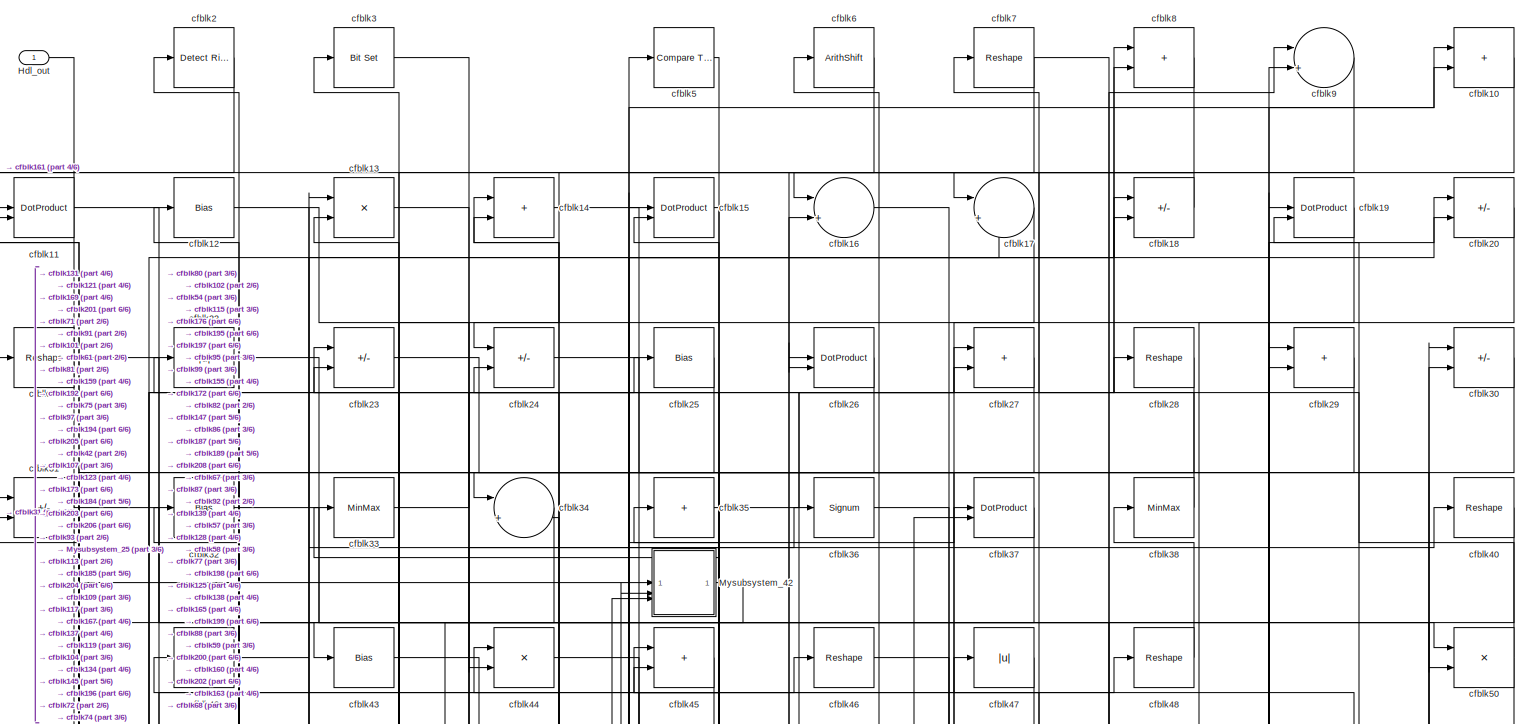
[diagram: root canvas - part 1/6, full width, top band]
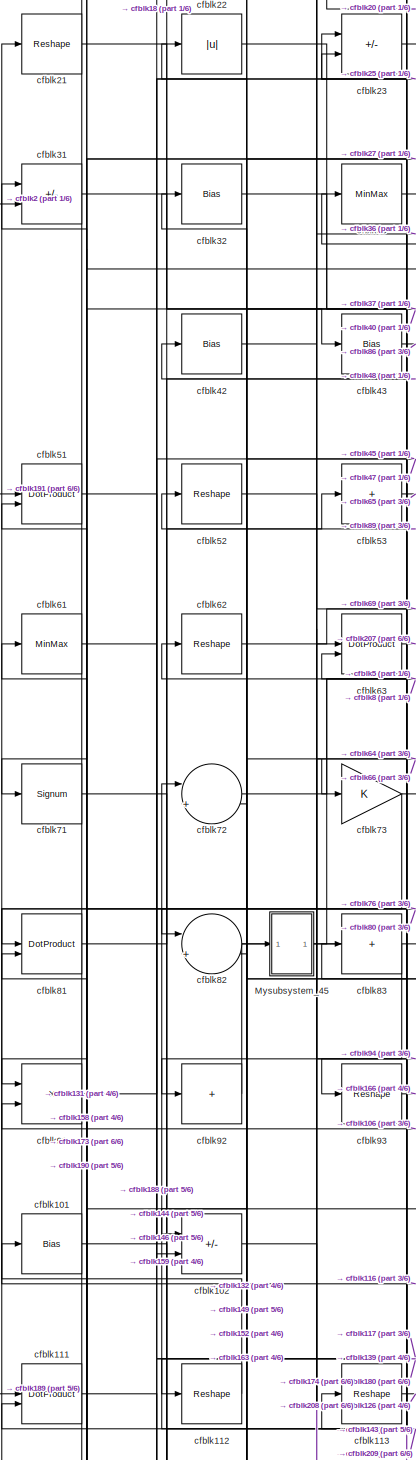
[diagram: root canvas - part 2/6, middle left region]
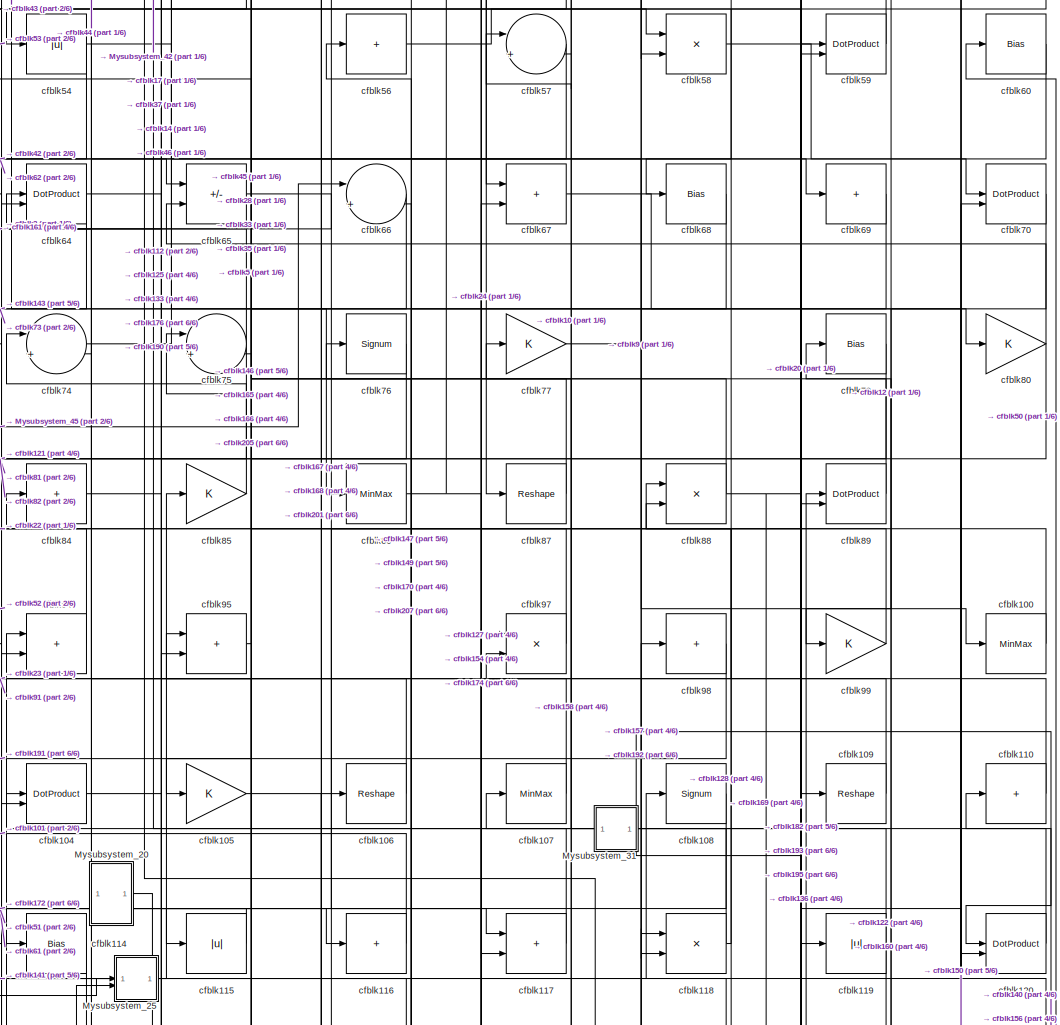
[diagram: root canvas - part 3/6, central region]
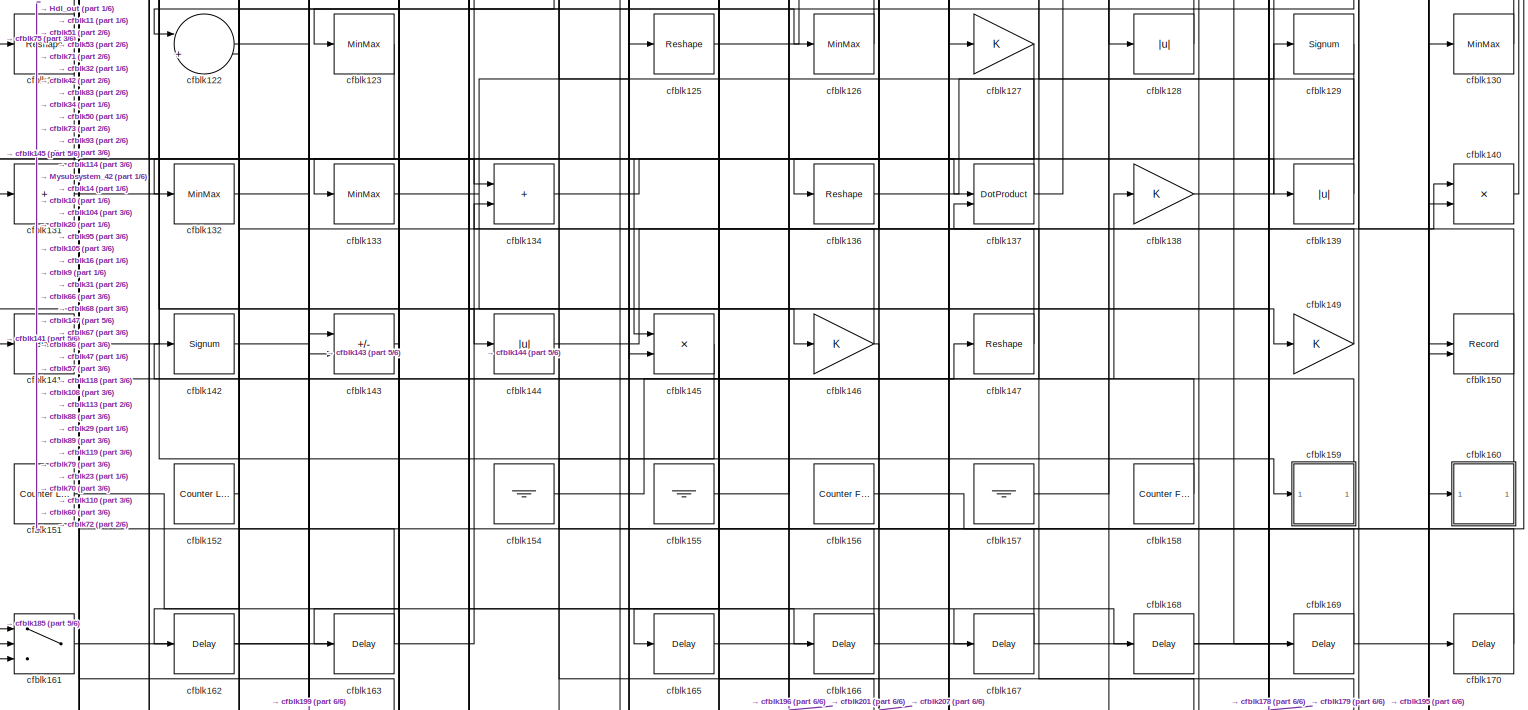
[diagram: root canvas - part 4/6, full width, bottom band]
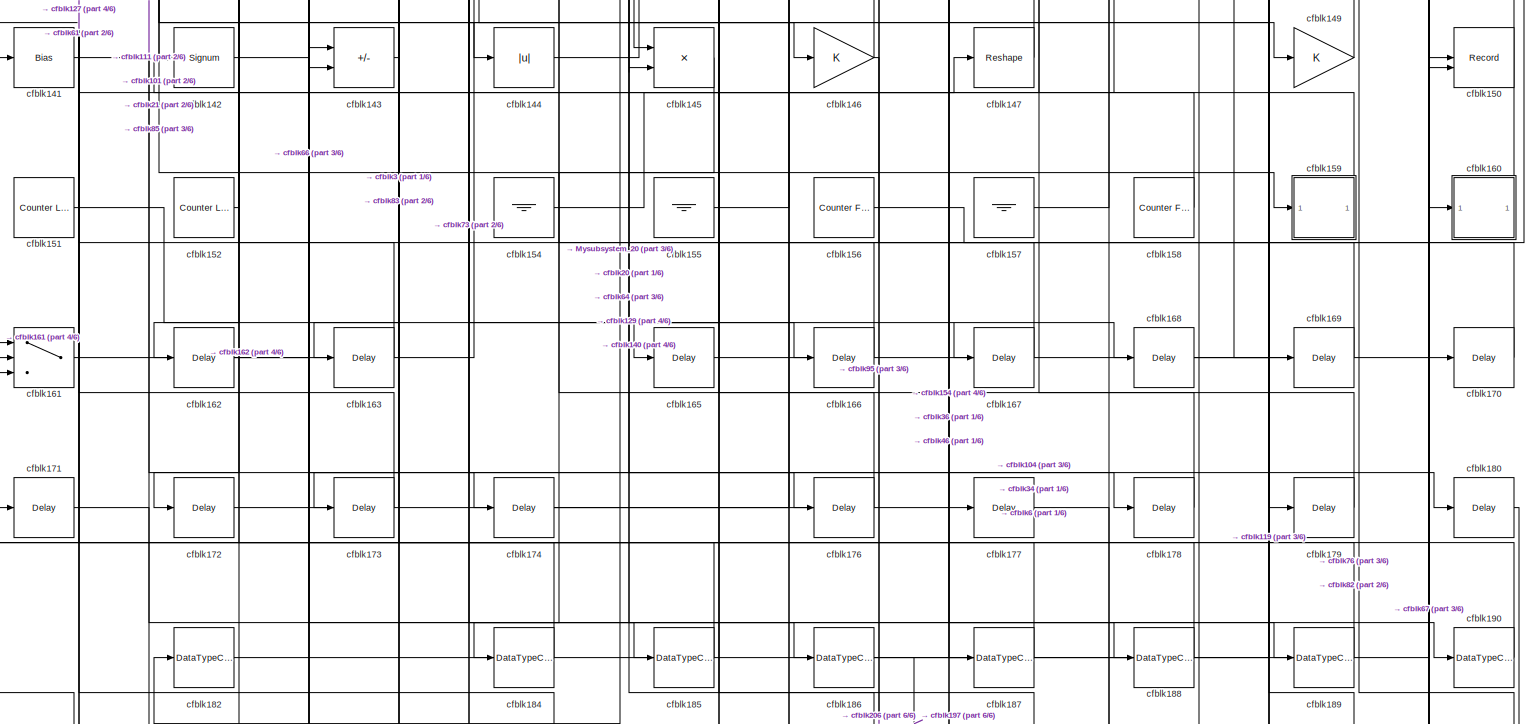
[diagram: root canvas - part 5/6, full width, bottom band]
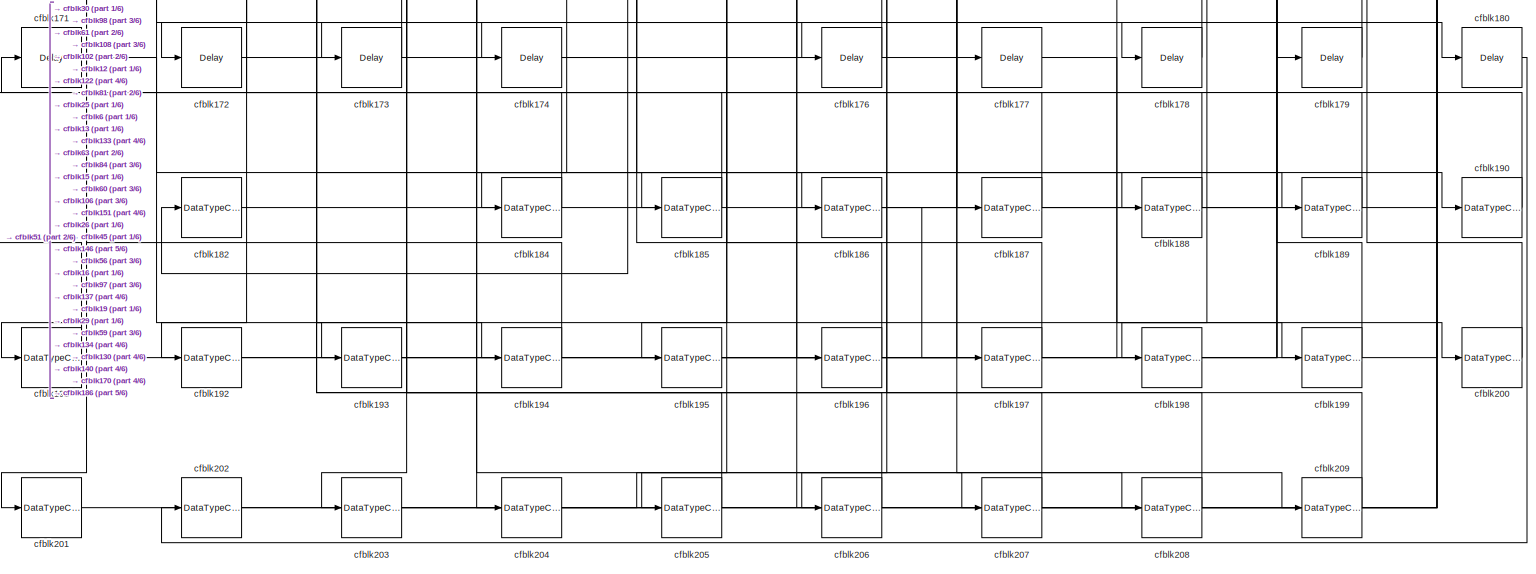
[diagram: root canvas - part 6/6, full width, bottom band]
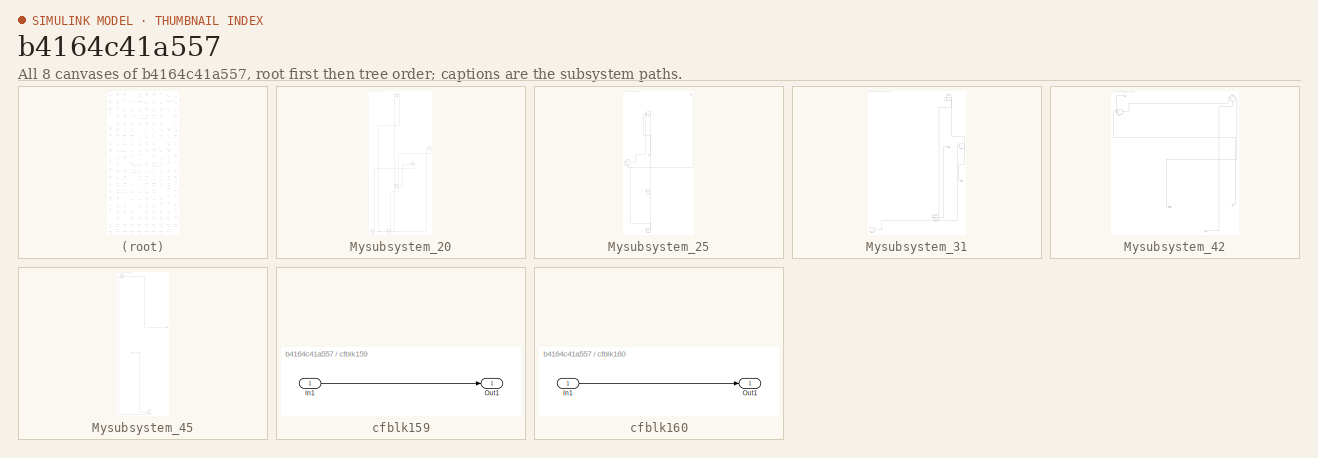
[diagram: thumbnail index - all 8 canvases of the model, root first then tree order]
MODEL slx_b4164c41a557
KIND model
CONFIG AbsTol = auto
CONFIG EnableMultiTasking = off
CONFIG FixedStep = auto
CONFIG MaxStep = auto
CONFIG MinStep = auto
CONFIG RelTol = 1e-3
CONFIG SampleTimeConstraint = Unconstrained
CONFIG SolverName = VariableStepAuto
CONFIG StartTime = 0.0
CONFIG StopTime = 10.0
BLOCK [Outport] Hdl_out
  OutDataTypeStr = uint8
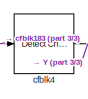
[diagram: Mysubsystem_20 - part 1/3, top center region]
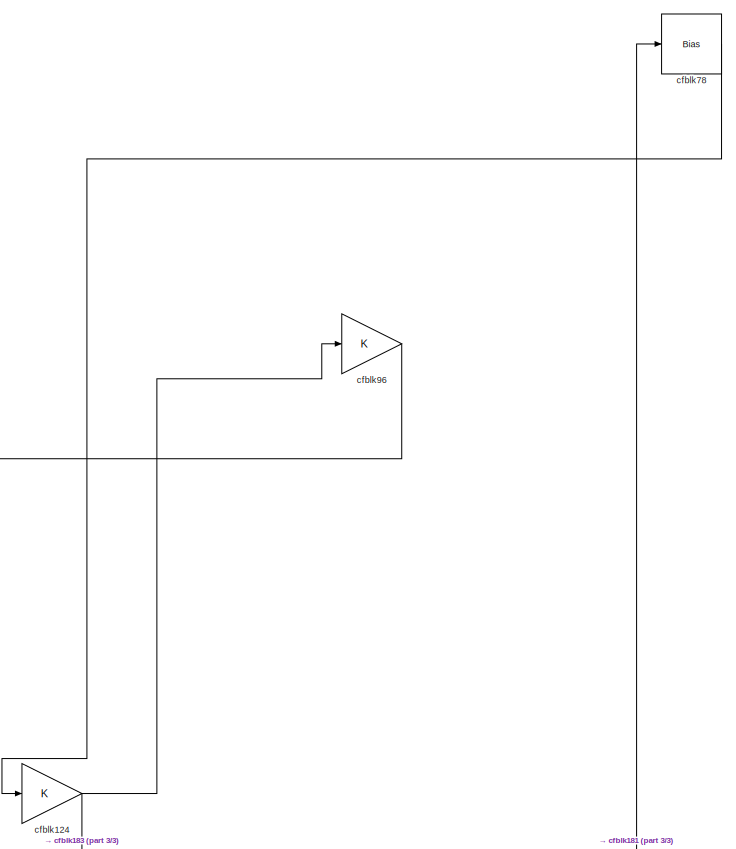
[diagram: Mysubsystem_20 - part 2/3, middle right region]
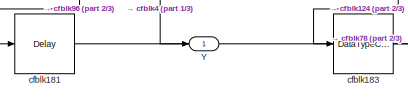
[diagram: Mysubsystem_20 - part 3/3, bottom left region]
BLOCK [SubSystem] Mysubsystem_20
  RTWFcnName = Mysubsystem_20
  RTWFcnNameOpts = User specified
  RTWFileNameOpts = Use function name
  RTWSystemCode = Reusable function
  TreatAsAtomicUnit = on
BLOCK [Outport] Mysubsystem_20/Y
BLOCK [Gain] Mysubsystem_20/cfblk124
BLOCK [Delay] Mysubsystem_20/cfblk181
  InputPortMap = u0
  SampleTime = 1
BLOCK [DataTypeConversion] Mysubsystem_20/cfblk183
  OutDataTypeStr = uint8
  RndMeth = Floor
  SaturateOnIntegerOverflow = off
BLOCK [Reference] Mysubsystem_20/cfblk4  REF=simulink/Logic and Bit
Operations/Detect
Change
  LibrarySourceBlock = hdlsllib/Logic and Bit\nOperations/Detect\nChange
  SourceBlock = simulink/Logic and Bit\nOperations/Detect\nChange
  SourceType = Detect Change
BLOCK [Bias] Mysubsystem_20/cfblk78
  Bias = 0.0
  SaturateOnIntegerOverflow = off
BLOCK [Gain] Mysubsystem_20/cfblk96
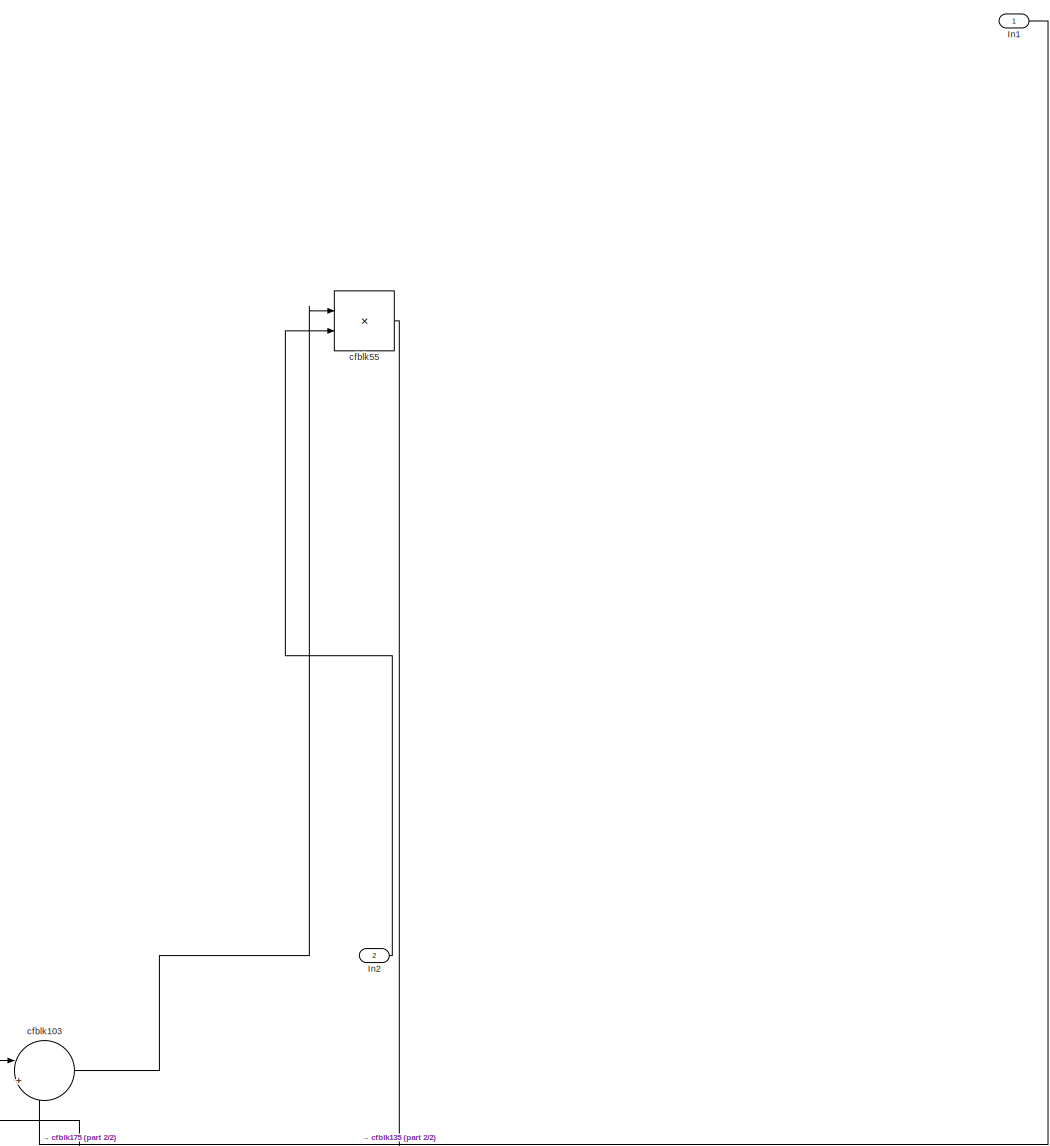
[diagram: Mysubsystem_25 - part 1/2, full width, top band]
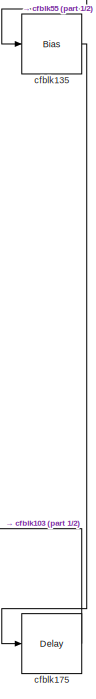
[diagram: Mysubsystem_25 - part 2/2, bottom center region]
BLOCK [SubSystem] Mysubsystem_25
  RTWFcnName = Mysubsystem_25
  RTWFcnNameOpts = User specified
  RTWFileNameOpts = Use function name
  RTWSystemCode = Reusable function
  TreatAsAtomicUnit = on
BLOCK [Inport] Mysubsystem_25/In1
BLOCK [Inport] Mysubsystem_25/In2
  Port = 2
BLOCK [Sum] Mysubsystem_25/cfblk103
  Inputs = |++
BLOCK [Bias] Mysubsystem_25/cfblk135
  Bias = 0.0
  SaturateOnIntegerOverflow = off
BLOCK [Delay] Mysubsystem_25/cfblk175
  InputPortMap = u0
  SampleTime = 1
BLOCK [Product] Mysubsystem_25/cfblk55
  Inputs = */
  RndMeth = Zero
  SaturateOnIntegerOverflow = on
BLOCK [SubSystem] Mysubsystem_31
  RTWFcnName = Mysubsystem_31
  RTWFcnNameOpts = User specified
  RTWFileNameOpts = Use function name
  RTWSystemCode = Reusable function
  TreatAsAtomicUnit = on
BLOCK [Outport] Mysubsystem_31/Out1
BLOCK [Outport] Mysubsystem_31/Out2
  Port = 2
BLOCK [Signum] Mysubsystem_31/cfblk148
BLOCK [Constant] Mysubsystem_31/cfblk153
  SampleTime = -1
BLOCK [Reshape] Mysubsystem_31/cfblk49
BLOCK [Sum] Mysubsystem_31/cfblk90
  IconShape = rectangular
  Inputs = +
BLOCK [SubSystem] Mysubsystem_42
  RTWFcnName = Mysubsystem_42
  RTWFcnNameOpts = User specified
  RTWFileNameOpts = Use function name
  RTWSystemCode = Reusable function
  TreatAsAtomicUnit = on
BLOCK [Inport] Mysubsystem_42/In1
BLOCK [Inport] Mysubsystem_42/In2
  Port = 2
BLOCK [Inport] Mysubsystem_42/In3
  Port = 3
BLOCK [Outport] Mysubsystem_42/Out1
BLOCK [Sum] Mysubsystem_42/cfblk39
  Inputs = |++
BLOCK [Sum] Mysubsystem_42/cfblk41
  IconShape = rectangular
BLOCK [SubSystem] Mysubsystem_45
  RTWFcnName = Mysubsystem_45
  RTWFcnNameOpts = User specified
  RTWFileNameOpts = Use function name
  RTWSystemCode = Reusable function
  TreatAsAtomicUnit = on
BLOCK [Inport] Mysubsystem_45/In1
BLOCK [Outport] Mysubsystem_45/Y
BLOCK [Reference] Mysubsystem_45/cfblk1  REF=hdlsllib/Logic and Bit
Operations/Detect Rise
Nonnegative
  SourceBlock = hdlsllib/Logic and Bit\nOperations/Detect Rise\nNonnegative
  SourceType = Detect Rise Nonnegative
BLOCK [Delay] Mysubsystem_45/cfblk164
  InputPortMap = u0
  SampleTime = 1
BLOCK [Sum] cfblk10
  IconShape = rectangular
  OutDataTypeStr = uint8
BLOCK [MinMax] cfblk100
  OutDataTypeStr = uint8
BLOCK [Bias] cfblk101
  Bias = 0.0
  SaturateOnIntegerOverflow = off
BLOCK [Sum] cfblk102
  IconShape = rectangular
  Inputs = +-
  OutDataTypeStr = uint8
BLOCK [DotProduct] cfblk104
  OutDataTypeStr = uint8
BLOCK [Gain] cfblk105
  OutDataTypeStr = uint8
BLOCK [Reshape] cfblk106
BLOCK [MinMax] cfblk107
  OutDataTypeStr = uint8
BLOCK [Signum] cfblk108
BLOCK [Reshape] cfblk109
BLOCK [DotProduct] cfblk11
  OutDataTypeStr = uint8
BLOCK [Sum] cfblk110
  IconShape = rectangular
  Inputs = +
  OutDataTypeStr = uint8
BLOCK [DotProduct] cfblk111
  OutDataTypeStr = uint8
BLOCK [Reshape] cfblk112
BLOCK [Reshape] cfblk113
BLOCK [Bias] cfblk114
  Bias = 0.0
  SaturateOnIntegerOverflow = off
BLOCK [Abs] cfblk115
  OutDataTypeStr = uint8
  SaturateOnIntegerOverflow = off
BLOCK [Sum] cfblk116
  IconShape = rectangular
  Inputs = +
  OutDataTypeStr = uint8
BLOCK [Sum] cfblk117
  IconShape = rectangular
  OutDataTypeStr = uint8
BLOCK [Product] cfblk118
  Inputs = */
  OutDataTypeStr = uint8
  RndMeth = Zero
  SaturateOnIntegerOverflow = on
BLOCK [Abs] cfblk119
  OutDataTypeStr = uint8
  SaturateOnIntegerOverflow = off
BLOCK [Bias] cfblk12
  Bias = 0.0
  SaturateOnIntegerOverflow = off
BLOCK [DotProduct] cfblk120
  OutDataTypeStr = uint8
BLOCK [Reshape] cfblk121
BLOCK [Sum] cfblk122
  Inputs = |++
  OutDataTypeStr = uint8
BLOCK [MinMax] cfblk123
  OutDataTypeStr = uint8
BLOCK [Reshape] cfblk125
BLOCK [MinMax] cfblk126
  OutDataTypeStr = uint8
BLOCK [Gain] cfblk127
  OutDataTypeStr = uint8
BLOCK [Abs] cfblk128
  OutDataTypeStr = uint8
  SaturateOnIntegerOverflow = off
BLOCK [Signum] cfblk129
BLOCK [Product] cfblk13
  Inputs = */
  OutDataTypeStr = uint8
  RndMeth = Zero
  SaturateOnIntegerOverflow = on
BLOCK [MinMax] cfblk130
  OutDataTypeStr = uint8
BLOCK [Sum] cfblk131
  IconShape = rectangular
  Inputs = +
  OutDataTypeStr = uint8
BLOCK [MinMax] cfblk132
  OutDataTypeStr = uint8
BLOCK [MinMax] cfblk133
  OutDataTypeStr = uint8
BLOCK [Sum] cfblk134
  IconShape = rectangular
  OutDataTypeStr = uint8
BLOCK [Reshape] cfblk136
BLOCK [DotProduct] cfblk137
  OutDataTypeStr = uint8
BLOCK [Gain] cfblk138
  OutDataTypeStr = uint8
BLOCK [Abs] cfblk139
  OutDataTypeStr = uint8
  SaturateOnIntegerOverflow = off
BLOCK [Sum] cfblk14
  IconShape = rectangular
  OutDataTypeStr = uint8
BLOCK [Product] cfblk140
  Inputs = */
  OutDataTypeStr = uint8
  RndMeth = Zero
  SaturateOnIntegerOverflow = on
BLOCK [Bias] cfblk141
  Bias = 0.0
  SaturateOnIntegerOverflow = off
BLOCK [Signum] cfblk142
BLOCK [Sum] cfblk143
  IconShape = rectangular
  Inputs = +-
  OutDataTypeStr = uint8
BLOCK [Abs] cfblk144
  OutDataTypeStr = uint8
  SaturateOnIntegerOverflow = off
BLOCK [Product] cfblk145
  Inputs = */
  OutDataTypeStr = uint8
  RndMeth = Zero
  SaturateOnIntegerOverflow = on
BLOCK [Gain] cfblk146
  OutDataTypeStr = uint8
BLOCK [Reshape] cfblk147
BLOCK [Gain] cfblk149
  OutDataTypeStr = uint8
BLOCK [DotProduct] cfblk15
  OutDataTypeStr = uint8
BLOCK [Record] cfblk150
  CompatibilityTag = XY
  FileSettingsInternal = {"entries":[{"content":{"excelSettings":{"content":{},"type":"Streamout.ExcelSettings"}},"type":"Streamout.FileSettingStorage","uuid":""}],"packageUris":["http:\/\/schema.mathworks.com\/mf0\/streamout_blocks\/R2020a"],"version":"1.0"}
  Layout = [1 1]
  SignalsInternal = {"entries":[{"content":{"signals":[{"content":{"blockPath":[],"dimensions":[1],"domain":"","lineColor":"#a2142f","plots":[1],"port":1,"signalID":24196,"signalName":"cfblk67"},"type":"RecordBlkView.Signal","uuid":""},{"content":{"blockPath":[],"dimensions":[1],"domain":"","lineColor":"#139fff","plots":[1],"port":2,"signalID":24199,"signalName":"cfblk186"},"type":"RecordBlkView.Signal","uuid":""}]},...<+143ch>
  VisualizationBindings = {"xyplotplugin":{"info":[{"series":[{"bindingParametersList":[{"parameter":"X-Axis","signalID":24196,"signalName":"cfblk67"},{"parameter":"Y-Axis","signalID":24199,"signalName":"cfblk186"}],"seriesID":33994}],"subplotID":1}]}}
  st = -1
BLOCK [Reference] cfblk151  REF=hdlsllib/Sources/Counter
Limited
  SourceBlock = hdlsllib/Sources/Counter\nLimited
  SourceType = Counter Limited
BLOCK [Reference] cfblk152  REF=hdlsllib/Sources/Counter
Limited
  SourceBlock = hdlsllib/Sources/Counter\nLimited
  SourceType = Counter Limited
BLOCK [Ground] cfblk154
BLOCK [Ground] cfblk155
BLOCK [Reference] cfblk156  REF=hdlsllib/Sources/Counter
Free-Running
  SourceBlock = hdlsllib/Sources/Counter\nFree-Running
  SourceType = Counter Free-Running
BLOCK [Ground] cfblk157
BLOCK [Reference] cfblk158  REF=hdlsllib/Sources/Counter
Free-Running
  SourceBlock = hdlsllib/Sources/Counter\nFree-Running
  SourceType = Counter Free-Running
BLOCK [SubSystem] cfblk159
  LibrarySourceBlock = hdlsllib/Ports &\nSubsystems/Subsystem
BLOCK [Inport] cfblk159/In1
BLOCK [Outport] cfblk159/Out1
BLOCK [Sum] cfblk16
  Inputs = |++
  OutDataTypeStr = uint8
BLOCK [SubSystem] cfblk160
  LibrarySourceBlock = hdlsllib/Ports &\nSubsystems/Subsystem
BLOCK [Inport] cfblk160/In1
BLOCK [Outport] cfblk160/Out1
BLOCK [Switch] cfblk161
  InputSameDT = off
  OutDataTypeStr = uint8
  SaturateOnIntegerOverflow = off
BLOCK [Delay] cfblk162
  InputPortMap = u0
  SampleTime = 1
BLOCK [Delay] cfblk163
  InputPortMap = u0
  SampleTime = 1
BLOCK [Delay] cfblk165
  InputPortMap = u0
  SampleTime = 1
BLOCK [Delay] cfblk166
  InputPortMap = u0
  SampleTime = 1
BLOCK [Delay] cfblk167
  InputPortMap = u0
  SampleTime = 1
BLOCK [Delay] cfblk168
  InputPortMap = u0
  SampleTime = 1
BLOCK [Delay] cfblk169
  InputPortMap = u0
  SampleTime = 1
BLOCK [Sum] cfblk17
  Inputs = |++
  OutDataTypeStr = uint8
BLOCK [Delay] cfblk170
  InputPortMap = u0
  SampleTime = 1
BLOCK [Delay] cfblk171
  InputPortMap = u0
  SampleTime = 1
BLOCK [Delay] cfblk172
  InputPortMap = u0
  SampleTime = 1
BLOCK [Delay] cfblk173
  InputPortMap = u0
  SampleTime = 1
BLOCK [Delay] cfblk174
  InputPortMap = u0
  SampleTime = 1
BLOCK [Delay] cfblk176
  InputPortMap = u0
  SampleTime = 1
BLOCK [Delay] cfblk177
  InputPortMap = u0
  SampleTime = 1
BLOCK [Delay] cfblk178
  InputPortMap = u0
  SampleTime = 1
BLOCK [Delay] cfblk179
  InputPortMap = u0
  SampleTime = 1
BLOCK [Sum] cfblk18
  IconShape = rectangular
  Inputs = +-
  OutDataTypeStr = uint8
BLOCK [Delay] cfblk180
  InputPortMap = u0
  SampleTime = 1
BLOCK [DataTypeConversion] cfblk182
  OutDataTypeStr = uint8
  RndMeth = Floor
  SaturateOnIntegerOverflow = off
BLOCK [DataTypeConversion] cfblk184
  OutDataTypeStr = uint8
  RndMeth = Floor
  SaturateOnIntegerOverflow = off
BLOCK [DataTypeConversion] cfblk185
  OutDataTypeStr = uint8
  RndMeth = Floor
  SaturateOnIntegerOverflow = off
BLOCK [DataTypeConversion] cfblk186
  OutDataTypeStr = uint8
  RndMeth = Floor
  SaturateOnIntegerOverflow = off
BLOCK [DataTypeConversion] cfblk187
  OutDataTypeStr = uint8
  RndMeth = Floor
  SaturateOnIntegerOverflow = off
BLOCK [DataTypeConversion] cfblk188
  OutDataTypeStr = uint8
  RndMeth = Floor
  SaturateOnIntegerOverflow = off
BLOCK [DataTypeConversion] cfblk189
  OutDataTypeStr = uint8
  RndMeth = Floor
  SaturateOnIntegerOverflow = off
BLOCK [DotProduct] cfblk19
  OutDataTypeStr = uint8
BLOCK [DataTypeConversion] cfblk190
  OutDataTypeStr = uint8
  RndMeth = Floor
  SaturateOnIntegerOverflow = off
BLOCK [DataTypeConversion] cfblk191
  OutDataTypeStr = uint8
  RndMeth = Floor
  SaturateOnIntegerOverflow = off
BLOCK [DataTypeConversion] cfblk192
  OutDataTypeStr = uint8
  RndMeth = Floor
  SaturateOnIntegerOverflow = off
BLOCK [DataTypeConversion] cfblk193
  OutDataTypeStr = uint8
  RndMeth = Floor
  SaturateOnIntegerOverflow = off
BLOCK [DataTypeConversion] cfblk194
  OutDataTypeStr = uint8
  RndMeth = Floor
  SaturateOnIntegerOverflow = off
BLOCK [DataTypeConversion] cfblk195
  OutDataTypeStr = uint8
  RndMeth = Floor
  SaturateOnIntegerOverflow = off
BLOCK [DataTypeConversion] cfblk196
  OutDataTypeStr = uint8
  RndMeth = Floor
  SaturateOnIntegerOverflow = off
BLOCK [DataTypeConversion] cfblk197
  OutDataTypeStr = uint8
  RndMeth = Floor
  SaturateOnIntegerOverflow = off
BLOCK [DataTypeConversion] cfblk198
  OutDataTypeStr = uint8
  RndMeth = Floor
  SaturateOnIntegerOverflow = off
BLOCK [DataTypeConversion] cfblk199
  OutDataTypeStr = uint8
  RndMeth = Floor
  SaturateOnIntegerOverflow = off
BLOCK [Reference] cfblk2  REF=hdlsllib/Logic and Bit
Operations/Detect Rise
Positive
  SourceBlock = hdlsllib/Logic and Bit\nOperations/Detect Rise\nPositive
  SourceType = Detect Rise Positive
BLOCK [Sum] cfblk20
  IconShape = rectangular
  Inputs = +-
  OutDataTypeStr = uint8
BLOCK [DataTypeConversion] cfblk200
  OutDataTypeStr = uint8
  RndMeth = Floor
  SaturateOnIntegerOverflow = off
BLOCK [DataTypeConversion] cfblk201
  OutDataTypeStr = uint8
  RndMeth = Floor
  SaturateOnIntegerOverflow = off
BLOCK [DataTypeConversion] cfblk202
  OutDataTypeStr = uint8
  RndMeth = Floor
  SaturateOnIntegerOverflow = off
BLOCK [DataTypeConversion] cfblk203
  OutDataTypeStr = uint8
  RndMeth = Floor
  SaturateOnIntegerOverflow = off
BLOCK [DataTypeConversion] cfblk204
  OutDataTypeStr = uint8
  RndMeth = Floor
  SaturateOnIntegerOverflow = off
BLOCK [DataTypeConversion] cfblk205
  OutDataTypeStr = uint8
  RndMeth = Floor
  SaturateOnIntegerOverflow = off
BLOCK [DataTypeConversion] cfblk206
  OutDataTypeStr = uint8
  RndMeth = Floor
  SaturateOnIntegerOverflow = off
BLOCK [DataTypeConversion] cfblk207
  OutDataTypeStr = uint8
  RndMeth = Floor
  SaturateOnIntegerOverflow = off
BLOCK [DataTypeConversion] cfblk208
  OutDataTypeStr = uint8
  RndMeth = Floor
  SaturateOnIntegerOverflow = off
BLOCK [DataTypeConversion] cfblk209
  OutDataTypeStr = uint8
  RndMeth = Floor
  SaturateOnIntegerOverflow = off
BLOCK [Reshape] cfblk21
BLOCK [Abs] cfblk22
  OutDataTypeStr = uint8
  SaturateOnIntegerOverflow = off
BLOCK [Sum] cfblk23
  IconShape = rectangular
  Inputs = +-
  OutDataTypeStr = uint8
BLOCK [Sum] cfblk24
  IconShape = rectangular
  Inputs = +-
  OutDataTypeStr = uint8
BLOCK [Bias] cfblk25
  Bias = 0.0
  SaturateOnIntegerOverflow = off
BLOCK [DotProduct] cfblk26
  OutDataTypeStr = uint8
BLOCK [Sum] cfblk27
  IconShape = rectangular
  OutDataTypeStr = uint8
BLOCK [Reshape] cfblk28
BLOCK [Sum] cfblk29
  IconShape = rectangular
  OutDataTypeStr = uint8
BLOCK [Reference] cfblk3  REF=simulink/Logic and Bit
Operations/Bit Set
  LibrarySourceBlock = hdlsllib/Logic and Bit\nOperations/Bit Set
  SourceBlock = simulink/Logic and Bit\nOperations/Bit Set
  SourceType = Bit Set
BLOCK [Sum] cfblk30
  IconShape = rectangular
  Inputs = +-
  OutDataTypeStr = uint8
BLOCK [Sum] cfblk31
  IconShape = rectangular
  Inputs = +-
  OutDataTypeStr = uint8
BLOCK [Bias] cfblk32
  Bias = 0.0
  SaturateOnIntegerOverflow = off
BLOCK [MinMax] cfblk33
  OutDataTypeStr = uint8
BLOCK [Sum] cfblk34
  Inputs = |++
  OutDataTypeStr = uint8
BLOCK [Sum] cfblk35
  IconShape = rectangular
  Inputs = +
  OutDataTypeStr = uint8
BLOCK [Signum] cfblk36
BLOCK [DotProduct] cfblk37
  OutDataTypeStr = uint8
BLOCK [MinMax] cfblk38
  OutDataTypeStr = uint8
BLOCK [Reshape] cfblk40
BLOCK [Bias] cfblk42
  Bias = 0.0
  SaturateOnIntegerOverflow = off
BLOCK [Bias] cfblk43
  Bias = 0.0
  SaturateOnIntegerOverflow = off
BLOCK [Product] cfblk44
  Inputs = */
  OutDataTypeStr = uint8
  RndMeth = Zero
  SaturateOnIntegerOverflow = on
BLOCK [Sum] cfblk45
  IconShape = rectangular
  OutDataTypeStr = uint8
BLOCK [Reshape] cfblk46
BLOCK [Abs] cfblk47
  OutDataTypeStr = uint8
  SaturateOnIntegerOverflow = off
BLOCK [Reshape] cfblk48
BLOCK [Reference] cfblk5  REF=hdlsllib/Logic and Bit
Operations/Compare
To Constant
  SourceBlock = hdlsllib/Logic and Bit\nOperations/Compare\nTo Constant
  SourceType = Compare To Constant
BLOCK [Product] cfblk50
  Inputs = */
  OutDataTypeStr = uint8
  RndMeth = Zero
  SaturateOnIntegerOverflow = on
BLOCK [DotProduct] cfblk51
  OutDataTypeStr = uint8
BLOCK [Reshape] cfblk52
BLOCK [Sum] cfblk53
  IconShape = rectangular
  Inputs = +
  OutDataTypeStr = uint8
BLOCK [Abs] cfblk54
  OutDataTypeStr = uint8
  SaturateOnIntegerOverflow = off
BLOCK [Sum] cfblk56
  IconShape = rectangular
  Inputs = +
  OutDataTypeStr = uint8
BLOCK [Sum] cfblk57
  Inputs = |++
  OutDataTypeStr = uint8
BLOCK [Product] cfblk58
  Inputs = */
  OutDataTypeStr = uint8
  RndMeth = Zero
  SaturateOnIntegerOverflow = on
BLOCK [DotProduct] cfblk59
  OutDataTypeStr = uint8
BLOCK [ArithShift] cfblk6
  BitShiftNumber = 8
  InputPortMap = u0
BLOCK [Bias] cfblk60
  Bias = 0.0
  SaturateOnIntegerOverflow = off
BLOCK [MinMax] cfblk61
  OutDataTypeStr = uint8
BLOCK [Reshape] cfblk62
BLOCK [DotProduct] cfblk63
  OutDataTypeStr = uint8
BLOCK [DotProduct] cfblk64
  OutDataTypeStr = uint8
BLOCK [Sum] cfblk65
  IconShape = rectangular
  Inputs = +-
  OutDataTypeStr = uint8
BLOCK [Sum] cfblk66
  Inputs = |++
  OutDataTypeStr = uint8
BLOCK [Sum] cfblk67
  IconShape = rectangular
  OutDataTypeStr = uint8
BLOCK [Bias] cfblk68
  Bias = 0.0
  SaturateOnIntegerOverflow = off
BLOCK [Sum] cfblk69
  IconShape = rectangular
  Inputs = +
  OutDataTypeStr = uint8
BLOCK [Reshape] cfblk7
BLOCK [DotProduct] cfblk70
  OutDataTypeStr = uint8
BLOCK [Signum] cfblk71
BLOCK [Sum] cfblk72
  Inputs = |++
  OutDataTypeStr = uint8
BLOCK [Gain] cfblk73
  OutDataTypeStr = uint8
BLOCK [Sum] cfblk74
  Inputs = |++
  OutDataTypeStr = uint8
BLOCK [Sum] cfblk75
  Inputs = |++
  OutDataTypeStr = uint8
BLOCK [Signum] cfblk76
BLOCK [Gain] cfblk77
  OutDataTypeStr = uint8
BLOCK [Bias] cfblk79
  Bias = 0.0
  SaturateOnIntegerOverflow = off
BLOCK [Sum] cfblk8
  IconShape = rectangular
  OutDataTypeStr = uint8
BLOCK [Gain] cfblk80
  OutDataTypeStr = uint8
BLOCK [DotProduct] cfblk81
  OutDataTypeStr = uint8
BLOCK [Sum] cfblk82
  Inputs = |++
  OutDataTypeStr = uint8
BLOCK [Sum] cfblk83
  IconShape = rectangular
  Inputs = +
  OutDataTypeStr = uint8
BLOCK [Sum] cfblk84
  IconShape = rectangular
  Inputs = +
  OutDataTypeStr = uint8
BLOCK [Gain] cfblk85
  OutDataTypeStr = uint8
BLOCK [MinMax] cfblk86
  OutDataTypeStr = uint8
BLOCK [Reshape] cfblk87
BLOCK [Product] cfblk88
  Inputs = */
  OutDataTypeStr = uint8
  RndMeth = Zero
  SaturateOnIntegerOverflow = on
BLOCK [DotProduct] cfblk89
  OutDataTypeStr = uint8
BLOCK [Sum] cfblk9
  Inputs = |++
  OutDataTypeStr = uint8
BLOCK [Product] cfblk91
  Inputs = */
  OutDataTypeStr = uint8
  RndMeth = Zero
  SaturateOnIntegerOverflow = on
BLOCK [Sum] cfblk92
  IconShape = rectangular
  Inputs = +
  OutDataTypeStr = uint8
BLOCK [Reshape] cfblk93
BLOCK [Sum] cfblk94
  IconShape = rectangular
  OutDataTypeStr = uint8
BLOCK [Sum] cfblk95
  IconShape = rectangular
  OutDataTypeStr = uint8
BLOCK [Product] cfblk97
  Inputs = */
  OutDataTypeStr = uint8
  RndMeth = Zero
  SaturateOnIntegerOverflow = on
BLOCK [Sum] cfblk98
  IconShape = rectangular
  Inputs = +
  OutDataTypeStr = uint8
BLOCK [Gain] cfblk99
  OutDataTypeStr = uint8
NET Mysubsystem_20/cfblk124:1 -> Mysubsystem_20/cfblk183:1, Mysubsystem_20/cfblk96:1
LINE Mysubsystem_20/cfblk181:1 -> Mysubsystem_20/cfblk78:1
LINE Mysubsystem_20/cfblk183:1 -> Mysubsystem_20/cfblk4:1
LINE Mysubsystem_20/cfblk4:1 -> Mysubsystem_20/Y:1
LINE Mysubsystem_20/cfblk78:1 -> Mysubsystem_20/cfblk124:1
LINE Mysubsystem_20/cfblk96:1 -> Mysubsystem_20/cfblk181:1
LINE Mysubsystem_20:1 -> cfblk182:1
LINE Mysubsystem_25/In1:1 -> Mysubsystem_25/cfblk103:2
LINE Mysubsystem_25/In2:1 -> Mysubsystem_25/cfblk55:2
LINE Mysubsystem_25/cfblk103:1 -> Mysubsystem_25/cfblk55:1
LINE Mysubsystem_25/cfblk135:1 -> Mysubsystem_25/cfblk175:1
LINE Mysubsystem_25/cfblk175:1 -> Mysubsystem_25/cfblk103:1
LINE Mysubsystem_25/cfblk55:1 -> Mysubsystem_25/cfblk135:1
LINE Mysubsystem_31/cfblk148:1 -> Mysubsystem_31/Out1:1
LINE Mysubsystem_31/cfblk153:1 -> Mysubsystem_31/cfblk90:1
LINE Mysubsystem_31/cfblk49:1 -> Mysubsystem_31/cfblk148:1
NET Mysubsystem_31/cfblk90:1 -> Mysubsystem_31/Out2:1, Mysubsystem_31/cfblk49:1
LINE Mysubsystem_31:1 -> cfblk89:2
LINE Mysubsystem_31:2 -> cfblk120:1
LINE Mysubsystem_42/In1:1 -> Mysubsystem_42/cfblk41:2
LINE Mysubsystem_42/In2:1 -> Mysubsystem_42/cfblk41:1
LINE Mysubsystem_42/In3:1 -> Mysubsystem_42/cfblk39:2
LINE Mysubsystem_42/cfblk39:1 -> Mysubsystem_42/Out1:1
LINE Mysubsystem_42/cfblk41:1 -> Mysubsystem_42/cfblk39:1
LINE Mysubsystem_42:1 -> Mysubsystem_25:1
LINE Mysubsystem_45/In1:1 -> Mysubsystem_45/cfblk164:1
LINE Mysubsystem_45/cfblk164:1 -> Mysubsystem_45/cfblk1:1
LINE Mysubsystem_45/cfblk1:1 -> Mysubsystem_45/Y:1
LINE Mysubsystem_45:1 -> cfblk66:1
LINE cfblk100:1 -> cfblk84:1
NET cfblk101:1 -> cfblk144:1, cfblk18:2
LINE cfblk102:1 -> cfblk174:1
NET cfblk104:1 -> cfblk125:1, cfblk17:2, cfblk37:1
NET cfblk105:1 -> cfblk167:1, cfblk168:1
NET cfblk106:1 -> Mysubsystem_25:2, cfblk64:1, cfblk91:2
LINE cfblk107:1 -> cfblk23:1
LINE cfblk108:1 -> cfblk172:1
LINE cfblk109:1 -> cfblk24:2
NET cfblk10:1 -> cfblk161:2, cfblk57:2
NET cfblk110:1 -> cfblk88:2, cfblk97:2
LINE cfblk111:1 -> cfblk188:1
LINE cfblk112:1 -> cfblk21:1
NET cfblk113:1 -> cfblk126:1, cfblk40:1
LINE cfblk114:1 -> cfblk122:2
LINE cfblk115:1 -> cfblk114:1
LINE cfblk116:1 -> cfblk101:1
LINE cfblk117:1 -> cfblk44:1
NET cfblk118:1 -> cfblk107:1, cfblk88:1
NET cfblk119:1 -> Mysubsystem_42:2, cfblk122:1
LINE cfblk11:1 -> cfblk50:1
LINE cfblk120:1 -> cfblk77:1
LINE cfblk121:1 -> cfblk11:1
LINE cfblk122:1 -> cfblk199:1
LINE cfblk123:1 -> cfblk133:1
LINE cfblk125:1 -> cfblk9:2
LINE cfblk126:1 -> cfblk31:1
LINE cfblk127:1 -> cfblk141:1
NET cfblk128:1 -> cfblk108:1, cfblk113:1
NET cfblk129:1 -> cfblk145:1, cfblk161:3
NET cfblk12:1 -> cfblk194:1, cfblk44:2
LINE cfblk130:1 -> cfblk72:1
NET cfblk131:1 -> Hdl_out:1, cfblk53:1
NET cfblk132:1 -> cfblk134:1, cfblk162:1
NET cfblk133:1 -> cfblk178:1, cfblk179:1, cfblk95:2
NET cfblk134:1 -> cfblk10:1, cfblk137:1, cfblk20:2
LINE cfblk136:1 -> cfblk89:1
NET cfblk137:1 -> Mysubsystem_42:3, cfblk14:1
NET cfblk138:1 -> cfblk10:2, cfblk129:1
LINE cfblk139:1 -> cfblk47:1
LINE cfblk13:1 -> cfblk204:1
LINE cfblk140:1 -> cfblk110:1
LINE cfblk141:1 -> cfblk85:1
LINE cfblk142:1 -> cfblk186:1
LINE cfblk143:1 -> cfblk83:1
LINE cfblk144:1 -> cfblk140:1
LINE cfblk145:1 -> cfblk184:1
NET cfblk146:1 -> cfblk206:1, cfblk95:1
NET cfblk147:1 -> cfblk104:1, cfblk34:2, cfblk6:1
NET cfblk149:1 -> cfblk76:1, cfblk82:2
LINE cfblk14:1 -> cfblk80:1
LINE cfblk151:1 -> cfblk196:1
LINE cfblk152:1 -> cfblk42:1
NET cfblk154:1 -> cfblk147:1, cfblk67:2
LINE cfblk155:1 -> cfblk16:2
LINE cfblk156:1 -> cfblk60:1
LINE cfblk157:1 -> cfblk118:1
NET cfblk158:1 -> cfblk51:2, cfblk57:1
LINE cfblk159/In1:1 -> cfblk159/Out1:1
NET cfblk159:1 -> cfblk138:1, cfblk32:1
LINE cfblk15:1 -> cfblk195:1
LINE cfblk160/In1:1 -> cfblk160/Out1:1
LINE cfblk160:1 -> cfblk79:1
LINE cfblk161:1 -> cfblk94:1
LINE cfblk162:1 -> cfblk143:1
LINE cfblk163:1 -> cfblk72:2
LINE cfblk165:1 -> cfblk29:2
LINE cfblk166:1 -> cfblk75:1
LINE cfblk167:1 -> cfblk14:2
LINE cfblk168:1 -> cfblk70:2
LINE cfblk169:1 -> cfblk11:2
LINE cfblk16:1 -> cfblk208:1
LINE cfblk170:1 -> cfblk66:2
LINE cfblk171:1 -> cfblk193:1
LINE cfblk172:1 -> cfblk26:1
LINE cfblk173:1 -> cfblk81:2
LINE cfblk174:1 -> cfblk97:1
LINE cfblk176:1 -> cfblk45:2
LINE cfblk177:1 -> cfblk200:1
LINE cfblk178:1 -> cfblk137:2
LINE cfblk179:1 -> cfblk134:2
LINE cfblk17:1 -> cfblk67:1
LINE cfblk180:1 -> cfblk202:1
LINE cfblk182:1 -> cfblk119:1
LINE cfblk184:1 -> cfblk3:1
LINE cfblk185:1 -> cfblk161:1
NET cfblk186:1 -> cfblk150:2, cfblk197:1
LINE cfblk187:1 -> cfblk142:1
LINE cfblk188:1 -> cfblk61:1
LINE cfblk189:1 -> cfblk111:1
LINE cfblk18:1 -> cfblk17:1
LINE cfblk190:1 -> cfblk111:2
NET cfblk191:1 -> cfblk177:1, cfblk51:1
LINE cfblk192:1 -> cfblk98:1
LINE cfblk193:1 -> cfblk59:1
LINE cfblk194:1 -> cfblk171:1
NET cfblk195:1 -> cfblk170:1, cfblk59:2
LINE cfblk196:1 -> cfblk15:1
LINE cfblk197:1 -> cfblk15:2
LINE cfblk198:1 -> cfblk29:1
LINE cfblk199:1 -> cfblk19:1
LINE cfblk19:1 -> cfblk198:1
LINE cfblk200:1 -> cfblk19:2
NET cfblk201:1 -> cfblk106:1, cfblk140:2
LINE cfblk202:1 -> cfblk30:1
LINE cfblk203:1 -> cfblk30:2
LINE cfblk204:1 -> cfblk209:1
LINE cfblk205:1 -> cfblk13:1
LINE cfblk206:1 -> cfblk13:2
NET cfblk207:1 -> cfblk130:1, cfblk56:1
LINE cfblk208:1 -> cfblk63:1
LINE cfblk209:1 -> cfblk63:2
NET cfblk20:1 -> cfblk145:2, cfblk93:1
LINE cfblk21:1 -> cfblk146:1
LINE cfblk22:1 -> cfblk58:2
LINE cfblk23:1 -> cfblk160:1
LINE cfblk24:1 -> cfblk87:1
LINE cfblk25:1 -> cfblk173:1
LINE cfblk26:1 -> cfblk192:1
NET cfblk27:1 -> Mysubsystem_42:1, cfblk71:1
LINE cfblk28:1 -> cfblk115:1
LINE cfblk29:1 -> cfblk34:1
LINE cfblk2:1 -> cfblk31:2
LINE cfblk30:1 -> cfblk201:1
LINE cfblk31:1 -> cfblk43:1
LINE cfblk32:1 -> cfblk128:1
LINE cfblk33:1 -> cfblk27:1
LINE cfblk34:1 -> cfblk123:1
LINE cfblk35:1 -> cfblk8:2
LINE cfblk36:1 -> cfblk189:1
LINE cfblk37:1 -> cfblk102:1
LINE cfblk38:1 -> cfblk7:1
LINE cfblk3:1 -> cfblk185:1
LINE cfblk40:1 -> cfblk91:1
NET cfblk42:1 -> cfblk18:1, cfblk36:1, cfblk64:2
LINE cfblk43:1 -> cfblk86:1
LINE cfblk44:1 -> cfblk109:1
NET cfblk45:1 -> cfblk102:2, cfblk54:1
LINE cfblk46:1 -> cfblk187:1
LINE cfblk47:1 -> cfblk92:1
LINE cfblk48:1 -> cfblk38:1
NET cfblk50:1 -> cfblk163:1, cfblk28:1, cfblk68:1
NET cfblk51:1 -> cfblk116:1, cfblk139:1
LINE cfblk52:1 -> cfblk94:2
LINE cfblk53:1 -> cfblk65:1
NET cfblk54:1 -> cfblk104:2, cfblk118:2
LINE cfblk56:1 -> cfblk58:1
LINE cfblk57:1 -> cfblk74:2
LINE cfblk58:1 -> cfblk70:1
LINE cfblk59:1 -> cfblk12:1
LINE cfblk5:1 -> cfblk75:2
LINE cfblk60:1 -> cfblk205:1
NET cfblk61:1 -> cfblk117:2, cfblk180:1, cfblk27:2
LINE cfblk62:1 -> cfblk69:1
LINE cfblk63:1 -> cfblk207:1
NET cfblk64:1 -> cfblk112:1, cfblk190:1
LINE cfblk65:1 -> cfblk117:1
NET cfblk66:1 -> cfblk143:2, cfblk73:1
LINE cfblk67:1 -> cfblk150:1
LINE cfblk68:1 -> cfblk136:1
LINE cfblk69:1 -> cfblk105:1
LINE cfblk6:1 -> cfblk203:1
LINE cfblk70:1 -> cfblk99:1
LINE cfblk71:1 -> cfblk159:1
LINE cfblk72:1 -> cfblk5:1
NET cfblk73:1 -> cfblk131:1, cfblk149:1
LINE cfblk74:1 -> cfblk46:1
NET cfblk75:1 -> cfblk121:1, cfblk2:1
LINE cfblk76:1 -> cfblk82:1
NET cfblk77:1 -> cfblk100:1, cfblk9:1
LINE cfblk79:1 -> cfblk165:1
NET cfblk7:1 -> cfblk16:1, cfblk50:2
NET cfblk80:1 -> cfblk65:2, cfblk81:1
LINE cfblk81:1 -> cfblk48:1
LINE cfblk82:1 -> cfblk8:1
LINE cfblk83:1 -> cfblk132:1
LINE cfblk84:1 -> cfblk176:1
LINE cfblk85:1 -> cfblk74:1
NET cfblk86:1 -> cfblk127:1, cfblk37:2
LINE cfblk87:1 -> cfblk23:2
NET cfblk88:1 -> cfblk120:2, cfblk169:1, cfblk20:1, cfblk33:1
LINE cfblk89:1 -> cfblk52:1
LINE cfblk8:1 -> cfblk26:2
LINE cfblk91:1 -> cfblk25:1
LINE cfblk92:1 -> Mysubsystem_45:1
LINE cfblk93:1 -> cfblk166:1
LINE cfblk94:1 -> cfblk62:1
LINE cfblk95:1 -> cfblk35:1
LINE cfblk97:1 -> cfblk22:1
LINE cfblk98:1 -> cfblk191:1
LINE cfblk99:1 -> cfblk45:1
LINE cfblk9:1 -> cfblk24:1
note: NET lines group one-source signal fan-out (src -> all destinations, sorted); 1:1 wires keep LINE
